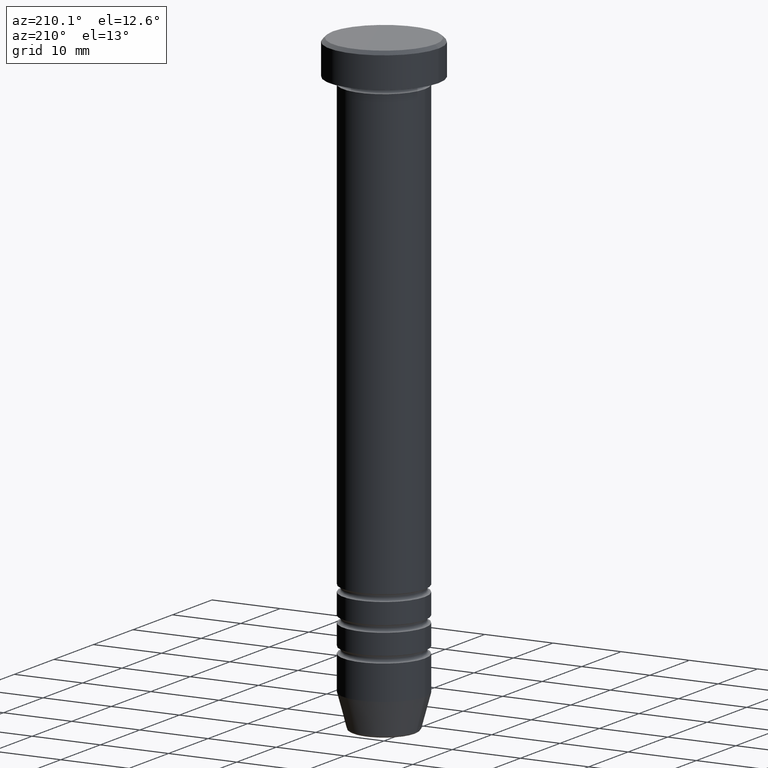
[diagram: clean part render]
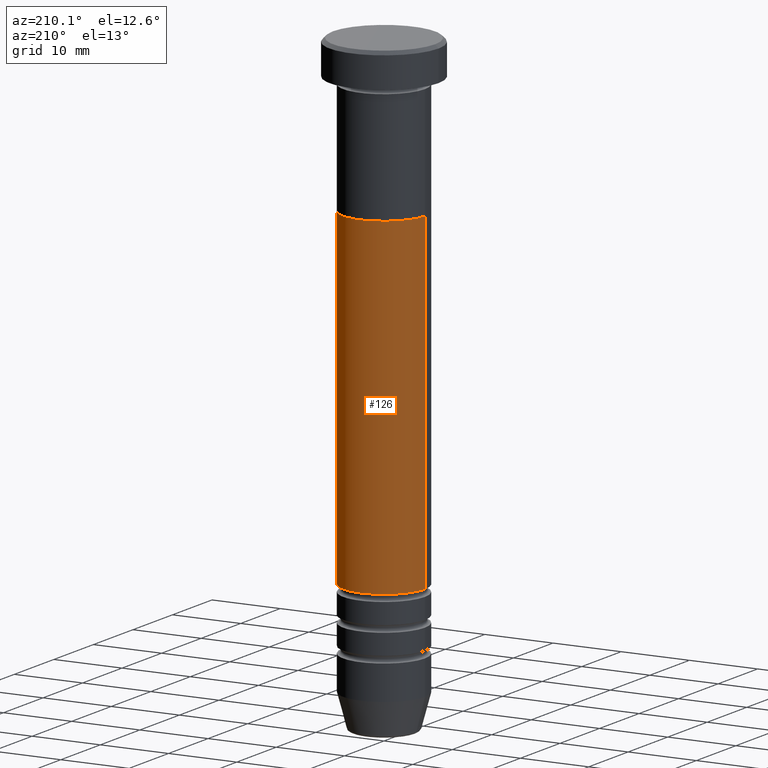
[diagram: same view with one face highlighted and labeled with its STEP entity id]
A machine part, auxiliary view. The second image highlights one B-rep face of the part: STEP entity #126.
In plain terms, the highlighted cylindrical surface (partial cylindrical patch) has radius 6 mm, axis along (-0, -0, 1).
Its self-contained STEP definition (entity closure, byte-faithful):
#8 = EDGE_CURVE ( 'NONE', #571, #529, #403, .T. ) ;
#50 = CARTESIAN_POINT ( 'NONE',  ( -6.000000000000000888, 7.347880794884120722E-16, -22.50000000000000000 ) ) ;
#61 = CARTESIAN_POINT ( 'NONE',  ( 0.000000000000000000, 0.000000000000000000, 0.000000000000000000 ) ) ;
#68 = VECTOR ( 'NONE', #789, 1000.000000000000000 ) ;
#84 = DIRECTION ( 'NONE',  ( -0.000000000000000000, -0.000000000000000000, 1.000000000000000000 ) ) ;
#101 = CARTESIAN_POINT ( 'NONE',  ( -5.999999999999992895, 7.347880794884112834E-16, -71.00000000000000000 ) ) ;
#123 = CARTESIAN_POINT ( 'NONE',  ( -5.999999999999996447, 7.347880794884115792E-16, 0.000000000000000000 ) ) ;
#126 = ADVANCED_FACE ( 'NONE', ( #933 ), #787, .T. ) ;
#131 = EDGE_CURVE ( 'NONE', #571, #364, #633, .T. ) ;
#137 = DIRECTION ( 'NONE',  ( 1.000000000000000000, 0.000000000000000000, 0.000000000000000000 ) ) ;
#141 = EDGE_CURVE ( 'NONE', #364, #824, #847, .T. ) ;
#247 = ORIENTED_EDGE ( 'NONE', *, *, #420, .T. ) ;
#289 = DIRECTION ( 'NONE',  ( -0.000000000000000000, -0.000000000000000000, 1.000000000000000000 ) ) ;
#308 = AXIS2_PLACEMENT_3D ( 'NONE', #61, #289, #137 ) ;
#334 = AXIS2_PLACEMENT_3D ( 'NONE', #886, #648, #727 ) ;
#342 = ORIENTED_EDGE ( 'NONE', *, *, #141, .F. ) ;
#364 = VERTEX_POINT ( 'NONE', #614 ) ;
#399 = DIRECTION ( 'NONE',  ( 1.000000000000000000, 0.000000000000000000, 0.000000000000000000 ) ) ;
#403 = CIRCLE ( 'NONE', #334, 5.999999999999992895 ) ;
#420 = EDGE_CURVE ( 'NONE', #529, #824, #861, .T. ) ;
#430 = ORIENTED_EDGE ( 'NONE', *, *, #131, .F. ) ;
#446 = AXIS2_PLACEMENT_3D ( 'NONE', #673, #84, #399 ) ;
#452 = DIRECTION ( 'NONE',  ( -0.000000000000000000, -0.000000000000000000, 1.000000000000000000 ) ) ;
#529 = VERTEX_POINT ( 'NONE', #101 ) ;
#571 = VERTEX_POINT ( 'NONE', #1029 ) ;
#596 = ORIENTED_EDGE ( 'NONE', *, *, #8, .T. ) ;
#614 = CARTESIAN_POINT ( 'NONE',  ( 6.000000000000000000, 0.000000000000000000, -22.50000000000000000 ) ) ;
#633 = LINE ( 'NONE', #867, #1053 ) ;
#648 = DIRECTION ( 'NONE',  ( -0.000000000000000000, -0.000000000000000000, 1.000000000000000000 ) ) ;
#673 = CARTESIAN_POINT ( 'NONE',  ( 0.000000000000000000, 0.000000000000000000, -22.50000000000000000 ) ) ;
#727 = DIRECTION ( 'NONE',  ( 1.000000000000000000, 0.000000000000000000, 0.000000000000000000 ) ) ;
#787 = CYLINDRICAL_SURFACE ( 'NONE', #308, 5.999999999999996447 ) ;
#789 = DIRECTION ( 'NONE',  ( -0.000000000000000000, -0.000000000000000000, 1.000000000000000000 ) ) ;
#824 = VERTEX_POINT ( 'NONE', #50 ) ;
#847 = CIRCLE ( 'NONE', #446, 6.000000000000000000 ) ;
#861 = LINE ( 'NONE', #123, #68 ) ;
#867 = CARTESIAN_POINT ( 'NONE',  ( 5.999999999999996447, 0.000000000000000000, 0.000000000000000000 ) ) ;
#886 = CARTESIAN_POINT ( 'NONE',  ( 0.000000000000000000, 0.000000000000000000, -71.00000000000000000 ) ) ;
#906 = EDGE_LOOP ( 'NONE', ( #596, #247, #342, #430 ) ) ;
#933 = FACE_OUTER_BOUND ( 'NONE', #906, .T. ) ;
#1029 = CARTESIAN_POINT ( 'NONE',  ( 5.999999999999992895, 0.000000000000000000, -71.00000000000000000 ) ) ;
#1053 = VECTOR ( 'NONE', #452, 1000.000000000000000 ) ;